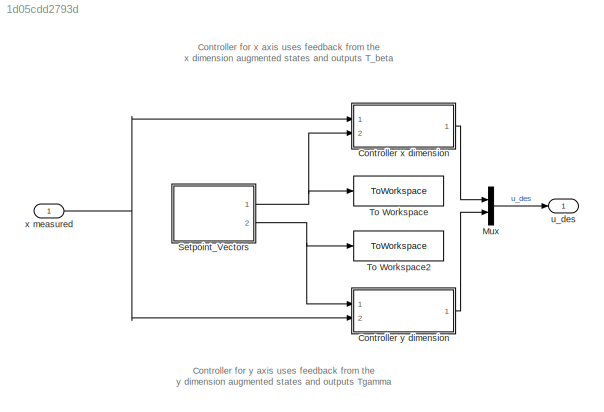
MODEL slx_1d05cdd2793d
KIND model
CONFIG AbsTol = auto
CONFIG EnableMultiTasking = off
CONFIG FixedStep = auto
CONFIG MaxStep = auto
CONFIG MinStep = auto
CONFIG RelTol = 1e-3
CONFIG SampleTimeConstraint = Unconstrained
CONFIG SolverName = VariableStepAuto
CONFIG StartTime = 0.0
CONFIG StopTime = 10.0
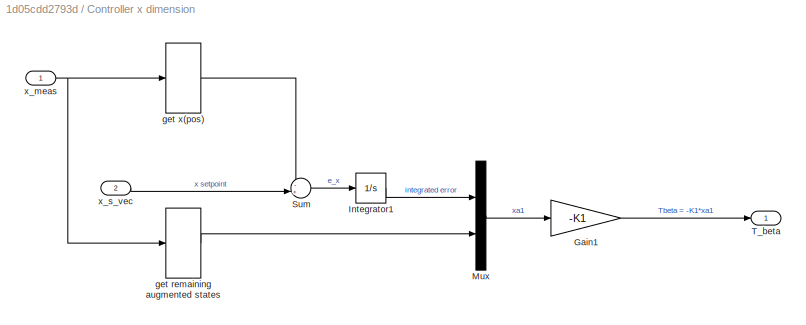
BLOCK [SubSystem] Controller x dimension
  Ports = [2, 1]
  RequestExecContextInheritance = off
BLOCK [Gain] Controller x dimension/Gain1
  Gain = -K1
  Multiplication = Matrix(K*u)
BLOCK [Integrator] Controller x dimension/Integrator1
  Ports = [1, 1]
BLOCK [Mux] Controller x dimension/Mux
  DisplayOption = bar
  Inputs = 2
  Ports = [2, 1]
BLOCK [Sum] Controller x dimension/Sum
  Inputs = -+|
  Ports = [2, 1]
BLOCK [Outport] Controller x dimension/T_beta
BLOCK [Selector] Controller x dimension/get remaining augmented states
  IndexOptions = Index vector (dialog)
  Indices = [1,2,3,4]
  InputPortWidth = 8
  OutputSizes = 1
  Ports = [1, 1]
BLOCK [Selector] Controller x dimension/get x(pos)
  IndexOptions = Index vector (dialog)
  Indices = [1]
  InputPortWidth = 8
  OutputSizes = 1
  Ports = [1, 1]
BLOCK [Inport] Controller x dimension/x_meas
BLOCK [Inport] Controller x dimension/x_s_vec
  Port = 2
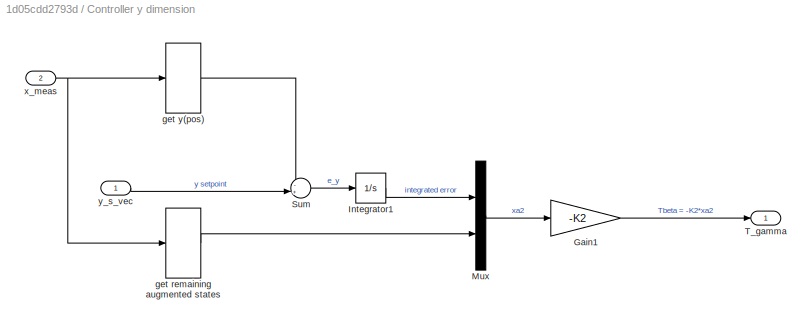
BLOCK [SubSystem] Controller y dimension
  NameLocation = top
  Ports = [2, 1]
  RequestExecContextInheritance = off
BLOCK [Gain] Controller y dimension/Gain1
  Gain = -K2
  Multiplication = Matrix(K*u)
BLOCK [Integrator] Controller y dimension/Integrator1
  Ports = [1, 1]
BLOCK [Mux] Controller y dimension/Mux
  DisplayOption = bar
  Inputs = 2
  Ports = [2, 1]
BLOCK [Sum] Controller y dimension/Sum
  Inputs = -+|
  Ports = [2, 1]
BLOCK [Outport] Controller y dimension/T_gamma
BLOCK [Selector] Controller y dimension/get remaining augmented states
  IndexOptions = Index vector (dialog)
  Indices = [5,6,7,8]
  InputPortWidth = 8
  OutputSizes = 1
  Ports = [1, 1]
BLOCK [Selector] Controller y dimension/get y(pos)
  IndexOptions = Index vector (dialog)
  Indices = [2]
  InputPortWidth = 8
  OutputSizes = 1
  Ports = [1, 1]
BLOCK [Inport] Controller y dimension/x_meas
  Port = 2
BLOCK [Inport] Controller y dimension/y_s_vec
BLOCK [Mux] Mux
  DisplayOption = bar
  Inputs = 2
  Ports = [2, 1]
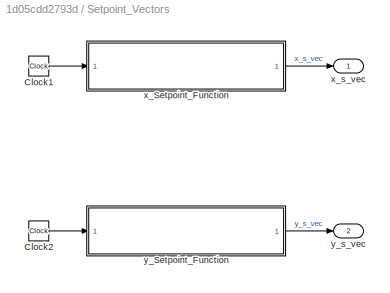
BLOCK [SubSystem] Setpoint_Vectors
  Ports = [0, 2]
  RequestExecContextInheritance = off
BLOCK [Clock] Setpoint_Vectors/Clock1
BLOCK [Clock] Setpoint_Vectors/Clock2
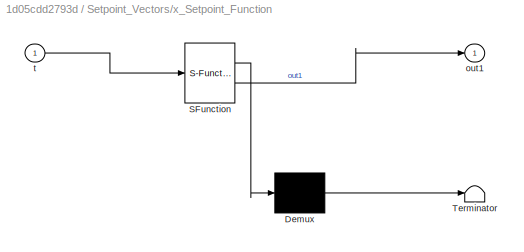
BLOCK [SubSystem] Setpoint_Vectors/x_Setpoint_Function
  ErrorFcn = Stateflow.Translate.translate
  PermitHierarchicalResolution = ExplicitOnly
  Ports = [1, 1]
  RequestExecContextInheritance = off
  SFBlockType = MATLAB Function
  TreatAsAtomicUnit = on
BLOCK [Demux] Setpoint_Vectors/x_Setpoint_Function/ Demux 
  Outputs = 1
  Ports = [1, 1]
BLOCK [S-Function] Setpoint_Vectors/x_Setpoint_Function/ SFunction 
  EnableBusSupport = on
  FunctionName = sf_sfun
  PortCounts = [1 2]
  Ports = [1, 2]
  SFcnIsStateOwnerBlock = off
  SFunctionDeploymentMode = off
  Tag = Stateflow S-Function 2
BLOCK [Terminator] Setpoint_Vectors/x_Setpoint_Function/ Terminator 
BLOCK [Outport] Setpoint_Vectors/x_Setpoint_Function/out1
BLOCK [Inport] Setpoint_Vectors/x_Setpoint_Function/t
BLOCK [Outport] Setpoint_Vectors/x_s_vec
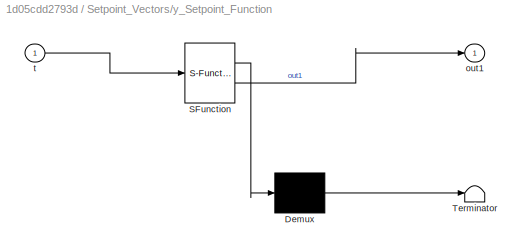
BLOCK [SubSystem] Setpoint_Vectors/y_Setpoint_Function
  ErrorFcn = Stateflow.Translate.translate
  PermitHierarchicalResolution = ExplicitOnly
  Ports = [1, 1]
  RequestExecContextInheritance = off
  SFBlockType = MATLAB Function
  TreatAsAtomicUnit = on
BLOCK [Demux] Setpoint_Vectors/y_Setpoint_Function/ Demux 
  Outputs = 1
  Ports = [1, 1]
BLOCK [S-Function] Setpoint_Vectors/y_Setpoint_Function/ SFunction 
  EnableBusSupport = on
  FunctionName = sf_sfun
  PortCounts = [1 2]
  Ports = [1, 2]
  SFcnIsStateOwnerBlock = off
  SFunctionDeploymentMode = off
  Tag = Stateflow S-Function 3
BLOCK [Terminator] Setpoint_Vectors/y_Setpoint_Function/ Terminator 
BLOCK [Outport] Setpoint_Vectors/y_Setpoint_Function/out1
BLOCK [Inport] Setpoint_Vectors/y_Setpoint_Function/t
BLOCK [Outport] Setpoint_Vectors/y_s_vec
  Port = 2
BLOCK [ToWorkspace] To Workspace
  FixptAsFi = on
  MaxDataPoints = inf
  Ports = [1]
  SampleTime = -1
  VariableName = x_s_vec
BLOCK [ToWorkspace] To Workspace2
  FixptAsFi = on
  MaxDataPoints = inf
  Ports = [1]
  SampleTime = -1
  VariableName = y_s_vec
BLOCK [Outport] u_des
BLOCK [Inport] x measured
ANNOTATION (root): Controller for x axis uses feedback from the x dimension augmented states and outputs T_beta
ANNOTATION (root): Controller for y axis uses feedback from the y dimension augmented states and outputs Tgamma
LINE Controller x dimension/Gain1:1 -> Controller x dimension/T_beta:1
LINE Controller x dimension/Integrator1:1 -> Controller x dimension/Mux:1
LINE Controller x dimension/Mux:1 -> Controller x dimension/Gain1:1
LINE Controller x dimension/Sum:1 -> Controller x dimension/Integrator1:1
LINE Controller x dimension/get remaining augmented states:1 -> Controller x dimension/Mux:2
LINE Controller x dimension/get x(pos):1 -> Controller x dimension/Sum:1
NET Controller x dimension/x_meas:1 -> Controller x dimension/get remaining augmented states:1, Controller x dimension/get x(pos):1
LINE Controller x dimension/x_s_vec:1 -> Controller x dimension/Sum:2
LINE Controller x dimension:1 -> Mux:1
LINE Controller y dimension/Gain1:1 -> Controller y dimension/T_gamma:1
LINE Controller y dimension/Integrator1:1 -> Controller y dimension/Mux:1
LINE Controller y dimension/Mux:1 -> Controller y dimension/Gain1:1
LINE Controller y dimension/Sum:1 -> Controller y dimension/Integrator1:1
LINE Controller y dimension/get remaining augmented states:1 -> Controller y dimension/Mux:2
LINE Controller y dimension/get y(pos):1 -> Controller y dimension/Sum:1
NET Controller y dimension/x_meas:1 -> Controller y dimension/get remaining augmented states:1, Controller y dimension/get y(pos):1
LINE Controller y dimension/y_s_vec:1 -> Controller y dimension/Sum:2
LINE Controller y dimension:1 -> Mux:2
LINE Mux:1 -> u_des:1
LINE Setpoint_Vectors/Clock1:1 -> Setpoint_Vectors/x_Setpoint_Function:1
LINE Setpoint_Vectors/Clock2:1 -> Setpoint_Vectors/y_Setpoint_Function:1
LINE Setpoint_Vectors/x_Setpoint_Function:1 -> Setpoint_Vectors/x_s_vec:1
LINE Setpoint_Vectors/y_Setpoint_Function:1 -> Setpoint_Vectors/y_s_vec:1
NET Setpoint_Vectors:1 -> Controller x dimension:2, To Workspace:1
NET Setpoint_Vectors:2 -> Controller y dimension:1, To Workspace2:1
NET x measured:1 -> Controller x dimension:1, Controller y dimension:2
note: NET lines group one-source signal fan-out (src -> all destinations, sorted); 1:1 wires keep LINE
CHART Setpoint_Vectors/y_Setpoint_Function states=1 transitions=1
  STATE_LABEL 'eML_blk_kernel()'
  STATE_LABEL 'SCRIPT:\nfunction out1 = y_s_vec(t)\n%#codegen\n\n%    This function was generated by the Symbolic Math Toolbox version 9.1.\n%    12-Mar-2023 18:18:38\n\nt2 = t.*pi;\nout1 = sin(t2./3.0).*(-3.0./4.0e+1)+sin(t2).*(3.0./4.0e+1);\n'
CHART Setpoint_Vectors/x_Setpoint_Function states=1 transitions=1
  STATE_LABEL 'eML_blk_kernel()'
  STATE_LABEL 'SCRIPT:\nfunction out1 = x_s_vec(t)\n%#codegen\n\n%    This function was generated by the Symbolic Math Toolbox version 9.1.\n%    12-Mar-2023 18:18:38\n\nt2 = t.*pi;\nout1 = cos(t2./3.0).*(3.0./4.0e+1)+cos(t2).*(3.0./4.0e+1);\n'
CHART  states=0 transitions=0
CHART  states=0 transitions=0
